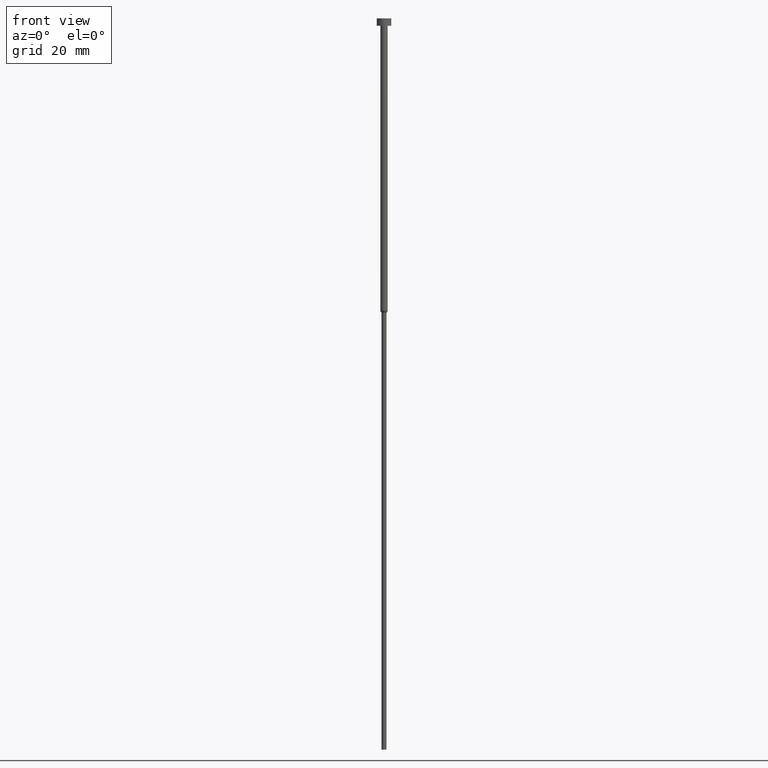
[diagram: clean part render]
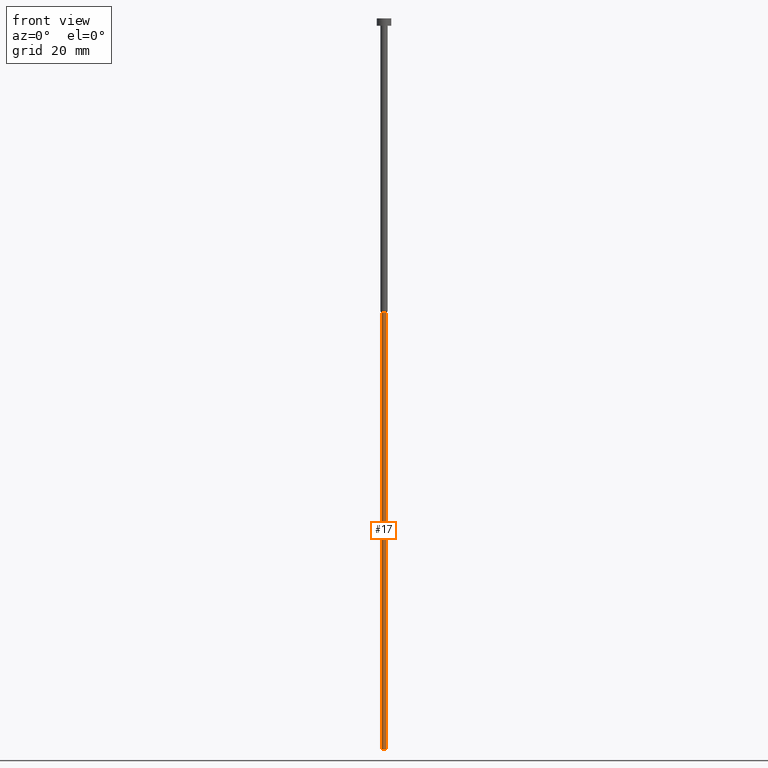
[diagram: same view with one face highlighted and labeled with its STEP entity id]
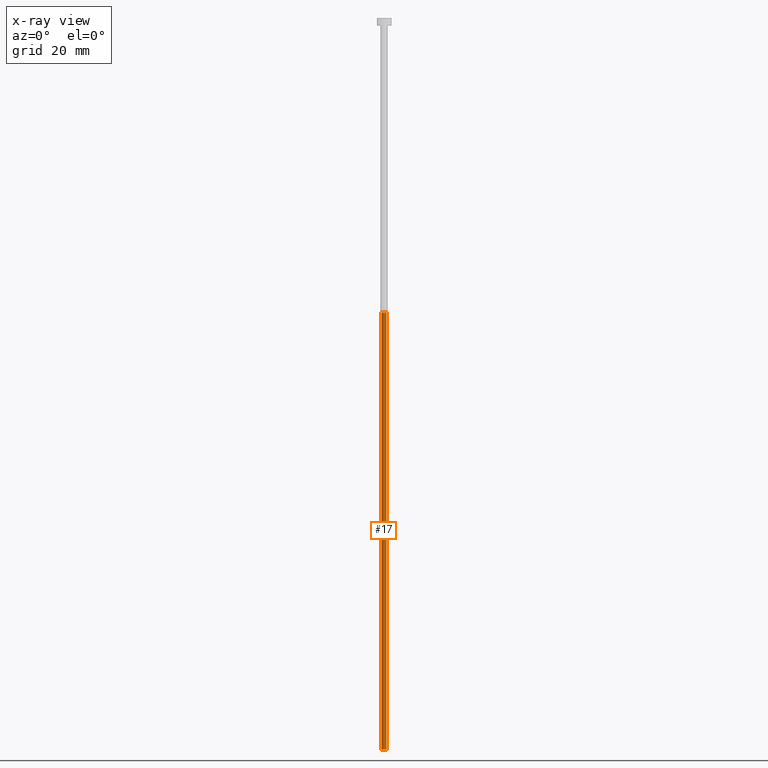
[diagram: x-ray of the same camera — body ghosted, the highlighted face saturated]
A machine part, front view. The second image highlights one B-rep face of the part: STEP entity #17.
The next image is the same camera in x-ray: the body ghosted, the highlighted face saturated — about 0% of this face is hidden behind the body in this view.
In plain terms, the highlighted cylindrical surface (edge-blend (fillet) strip) has radius 0.7 mm, axis along (-0, -0, 1).
Its self-contained STEP definition (entity closure, byte-faithful):
#9 = VERTEX_POINT ( 'NONE', #250 ) ;
#17 = ADVANCED_FACE ( 'NONE', ( #194 ), #61, .T. ) ;
#19 = EDGE_LOOP ( 'NONE', ( #66, #276, #116, #69 ) ) ;
#23 = EDGE_CURVE ( 'NONE', #9, #92, #77, .T. ) ;
#25 = AXIS2_PLACEMENT_3D ( 'NONE', #103, #306, #301 ) ;
#29 = DIRECTION ( 'NONE',  ( -0.000000000000000000, -0.000000000000000000, 1.000000000000000000 ) ) ;
#52 = DIRECTION ( 'NONE',  ( -0.000000000000000000, -0.000000000000000000, 1.000000000000000000 ) ) ;
#61 = CYLINDRICAL_SURFACE ( 'NONE', #259, 0.6999999999999998446 ) ;
#66 = ORIENTED_EDGE ( 'NONE', *, *, #288, .F. ) ;
#69 = ORIENTED_EDGE ( 'NONE', *, *, #134, .F. ) ;
#77 = CIRCLE ( 'NONE', #25, 0.6999999999999998446 ) ;
#92 = VERTEX_POINT ( 'NONE', #147 ) ;
#103 = CARTESIAN_POINT ( 'NONE',  ( 0.000000000000000000, 0.000000000000000000, -200.0000000000000000 ) ) ;
#104 = CIRCLE ( 'NONE', #316, 0.6999999999999998446 ) ;
#116 = ORIENTED_EDGE ( 'NONE', *, *, #347, .T. ) ;
#134 = EDGE_CURVE ( 'NONE', #175, #202, #104, .T. ) ;
#144 = CARTESIAN_POINT ( 'NONE',  ( 0.000000000000000000, 0.000000000000000000, -80.51961524227066036 ) ) ;
#147 = CARTESIAN_POINT ( 'NONE',  ( 0.6999999999999998446, 0.000000000000000000, -200.0000000000000000 ) ) ;
#161 = LINE ( 'NONE', #281, #289 ) ;
#162 = VECTOR ( 'NONE', #242, 1000.000000000000000 ) ;
#175 = VERTEX_POINT ( 'NONE', #338 ) ;
#184 = LINE ( 'NONE', #337, #162 ) ;
#194 = FACE_OUTER_BOUND ( 'NONE', #19, .T. ) ;
#202 = VERTEX_POINT ( 'NONE', #348 ) ;
#205 = DIRECTION ( 'NONE',  ( -0.000000000000000000, -0.000000000000000000, 1.000000000000000000 ) ) ;
#225 = CARTESIAN_POINT ( 'NONE',  ( 0.000000000000000000, 0.000000000000000000, 0.000000000000000000 ) ) ;
#242 = DIRECTION ( 'NONE',  ( -0.000000000000000000, -0.000000000000000000, 1.000000000000000000 ) ) ;
#250 = CARTESIAN_POINT ( 'NONE',  ( -0.6999999999999998446, 8.572527594031470725E-17, -200.0000000000000000 ) ) ;
#259 = AXIS2_PLACEMENT_3D ( 'NONE', #225, #29, #354 ) ;
#265 = DIRECTION ( 'NONE',  ( 1.000000000000000000, 0.000000000000000000, 0.000000000000000000 ) ) ;
#276 = ORIENTED_EDGE ( 'NONE', *, *, #23, .T. ) ;
#281 = CARTESIAN_POINT ( 'NONE',  ( 0.6999999999999998446, 0.000000000000000000, 0.000000000000000000 ) ) ;
#288 = EDGE_CURVE ( 'NONE', #9, #175, #184, .T. ) ;
#289 = VECTOR ( 'NONE', #52, 1000.000000000000000 ) ;
#301 = DIRECTION ( 'NONE',  ( 1.000000000000000000, 0.000000000000000000, 0.000000000000000000 ) ) ;
#306 = DIRECTION ( 'NONE',  ( -0.000000000000000000, -0.000000000000000000, 1.000000000000000000 ) ) ;
#316 = AXIS2_PLACEMENT_3D ( 'NONE', #144, #205, #265 ) ;
#337 = CARTESIAN_POINT ( 'NONE',  ( -0.6999999999999998446, 8.572527594031470725E-17, 0.000000000000000000 ) ) ;
#338 = CARTESIAN_POINT ( 'NONE',  ( -0.6999999999999998446, 8.572527594031470725E-17, -80.51961524227066036 ) ) ;
#347 = EDGE_CURVE ( 'NONE', #92, #202, #161, .T. ) ;
#348 = CARTESIAN_POINT ( 'NONE',  ( 0.6999999999999998446, 0.000000000000000000, -80.51961524227066036 ) ) ;
#354 = DIRECTION ( 'NONE',  ( 1.000000000000000000, 0.000000000000000000, 0.000000000000000000 ) ) ;